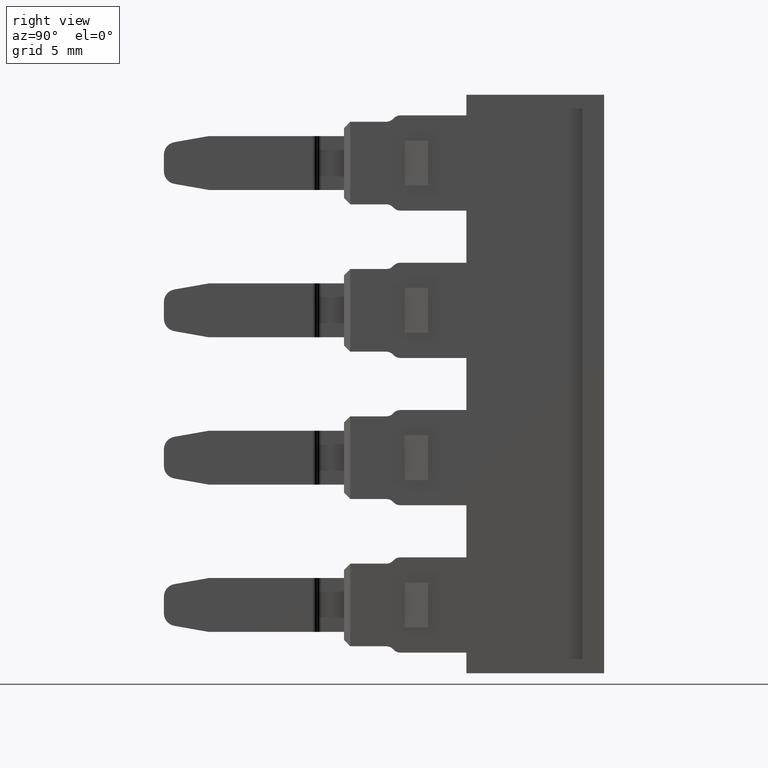
[diagram: clean part render]
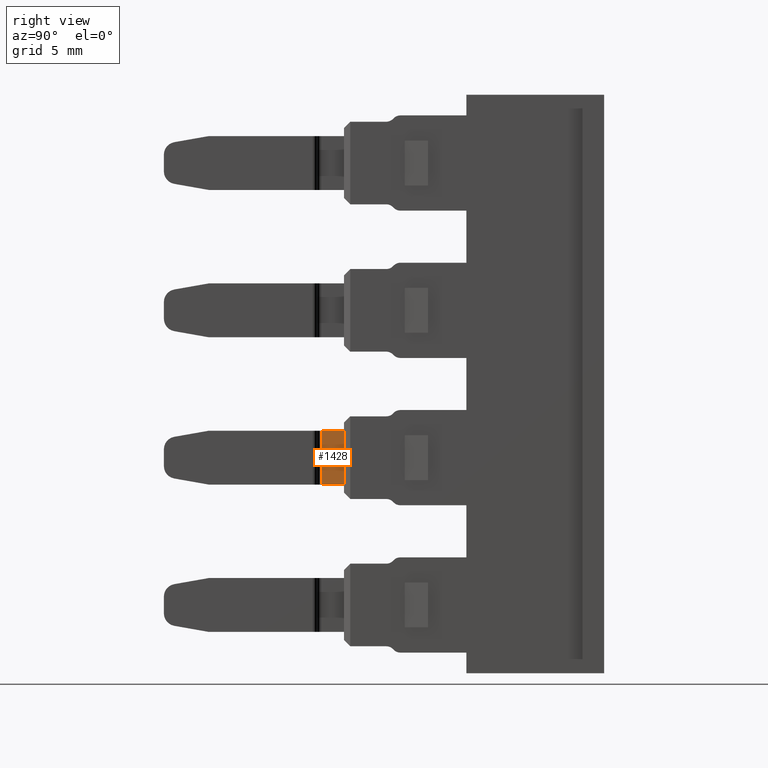
[diagram: same view with one face highlighted and labeled with its STEP entity id]
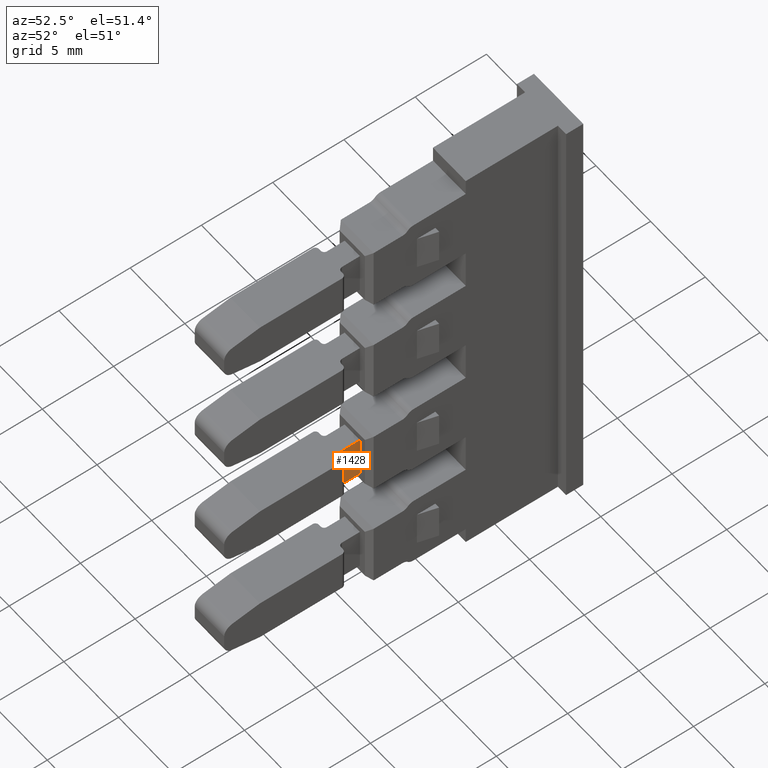
[diagram: same view with one face highlighted and labeled with its STEP entity id]
A machine part, right view. The second image highlights one B-rep face of the part: STEP entity #1428.
A second angle (auxiliary view) of the same face is appended — the face is thin or edge-on in the first view.
In plain terms, the highlighted planar face has unit normal (1, 0, 0).
Its self-contained STEP definition (entity closure, byte-faithful):
#115 = EDGE_LOOP ( 'NONE', ( #1800, #1911, #1869, #1891 ) ) ;
#427 = VERTEX_POINT ( 'NONE', #2388 ) ;
#433 = VERTEX_POINT ( 'NONE', #2408 ) ;
#438 = VERTEX_POINT ( 'NONE', #2392 ) ;
#461 = VERTEX_POINT ( 'NONE', #2435 ) ;
#979 = EDGE_CURVE ( 'NONE', #427, #438, #2539, .T. ) ;
#989 = EDGE_CURVE ( 'NONE', #461, #433, #2604, .T. ) ;
#1048 = EDGE_CURVE ( 'NONE', #461, #427, #2752, .T. ) ;
#1070 = EDGE_CURVE ( 'NONE', #438, #433, #1651, .T. ) ;
#1428 = ADVANCED_FACE ( 'NONE', ( #4988 ), #5057, .T. ) ;
#1644 = DIRECTION ( 'NONE',  ( -0.0000000000000000000, 1.000000000000000000, -2.594839121907101700E-014 ) ) ;
#1651 = LINE ( 'NONE', #1677, #3009 ) ;
#1677 = CARTESIAN_POINT ( 'NONE',  ( 111.4452529172784400, 248.6101602476014400, 151.3398226793860000 ) ) ;
#1800 = ORIENTED_EDGE ( 'NONE', *, *, #1070, .T. ) ;
#1869 = ORIENTED_EDGE ( 'NONE', *, *, #1048, .T. ) ;
#1891 = ORIENTED_EDGE ( 'NONE', *, *, #979, .T. ) ;
#1911 = ORIENTED_EDGE ( 'NONE', *, *, #989, .F. ) ;
#2388 = CARTESIAN_POINT ( 'NONE',  ( 111.4452529172782800, 244.5815789080035900, 154.3398226793859500 ) ) ;
#2392 = CARTESIAN_POINT ( 'NONE',  ( 111.4452529172784800, 244.5815789080035900, 151.3398226793871700 ) ) ;
#2408 = CARTESIAN_POINT ( 'NONE',  ( 111.4452529172783200, 245.8315789080019700, 151.3398226793864000 ) ) ;
#2435 = CARTESIAN_POINT ( 'NONE',  ( 111.4452529172781000, 245.8315789080019200, 154.3398226793859500 ) ) ;
#2533 = CARTESIAN_POINT ( 'NONE',  ( 111.4452529172791100, 244.5815789080035900, 66.53982267939530000 ) ) ;
#2539 = LINE ( 'NONE', #2533, #2957 ) ;
#2543 = DIRECTION ( 'NONE',  ( 7.193572994224081300E-015, 1.901732946337203200E-028, -1.000000000000000000 ) ) ;
#2575 = CARTESIAN_POINT ( 'NONE',  ( 111.4452529172781000, 245.8315789080020000, 149.3326569986724300 ) ) ;
#2584 = DIRECTION ( 'NONE',  ( 4.757245022048507700E-042, -1.799495001831193600E-028, -1.000000000000000000 ) ) ;
#2604 = LINE ( 'NONE', #2575, #2979 ) ;
#2752 = LINE ( 'NONE', #2777, #3034 ) ;
#2777 = CARTESIAN_POINT ( 'NONE',  ( 111.4452529172781000, 248.6101602476014400, 154.3398226793860000 ) ) ;
#2778 = DIRECTION ( 'NONE',  ( -0.0000000000000000000, -1.000000000000000000, -1.504573015594193100E-014 ) ) ;
#2957 = VECTOR ( 'NONE', #2543, 1000.000000000000000 ) ;
#2979 = VECTOR ( 'NONE', #2584, 1000.000000000000000 ) ;
#3009 = VECTOR ( 'NONE', #1644, 1000.000000000000000 ) ;
#3034 = VECTOR ( 'NONE', #2778, 1000.000000000000000 ) ;
#3479 = AXIS2_PLACEMENT_3D ( 'NONE', #5017, #5019, #5042 ) ;
#4988 = FACE_OUTER_BOUND ( 'NONE', #115, .T. ) ;
#5017 = CARTESIAN_POINT ( 'NONE',  ( 111.4452529172792100, 240.7826414389504900, 66.53982267939530000 ) ) ;
#5019 = DIRECTION ( 'NONE',  ( 1.000000000000000000, 2.643655590711538100E-014, 7.193572994224081300E-015 ) ) ;
#5042 = DIRECTION ( 'NONE',  ( -2.643655590711538100E-014, 1.000000000000000000, 0.0000000000000000000 ) ) ;
#5057 = PLANE ( 'NONE',  #3479 ) ;